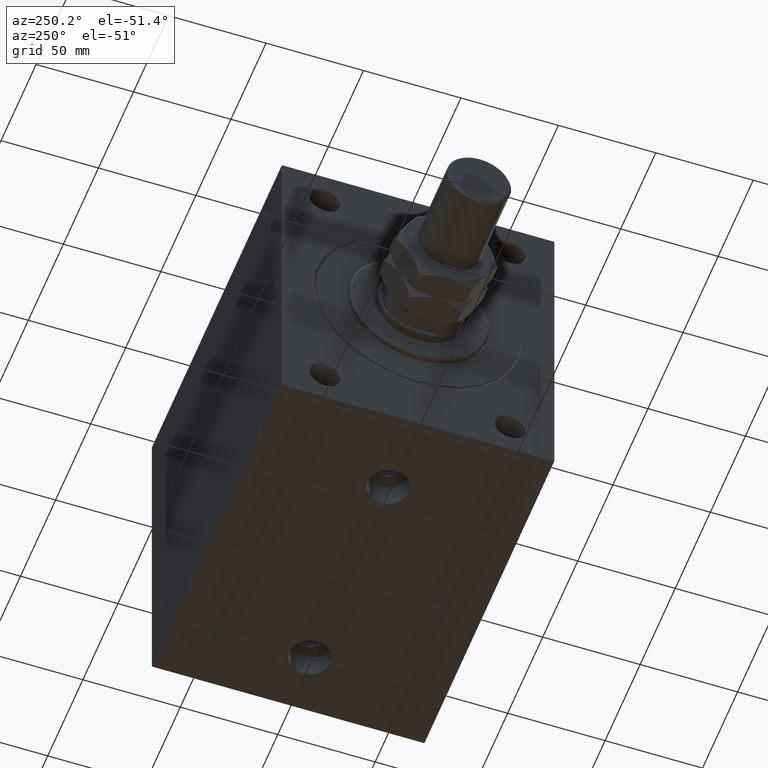
[diagram: clean part render]
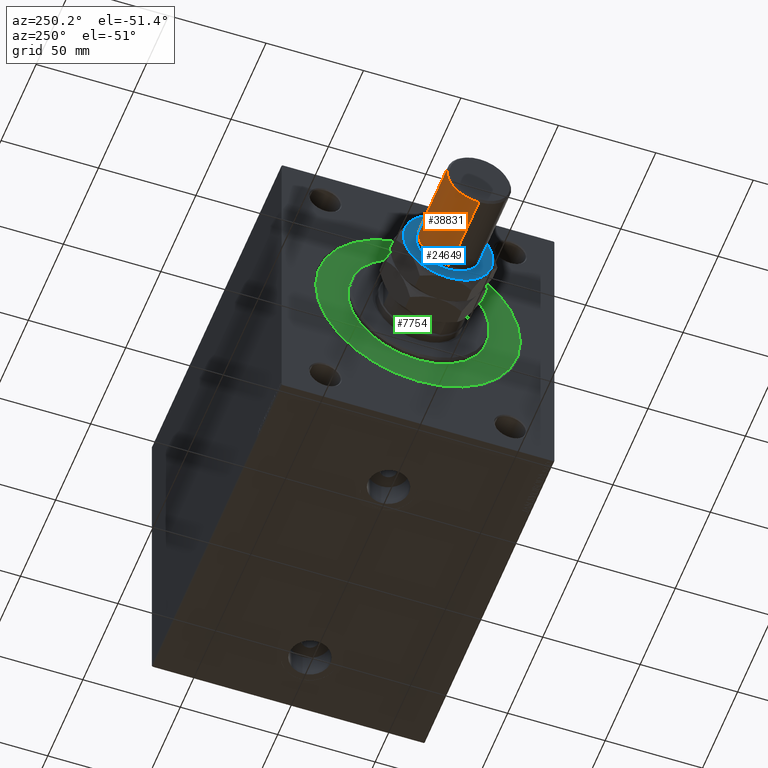
[diagram: same view with three faces highlighted in distinct colors, each labeled with its STEP entity id]
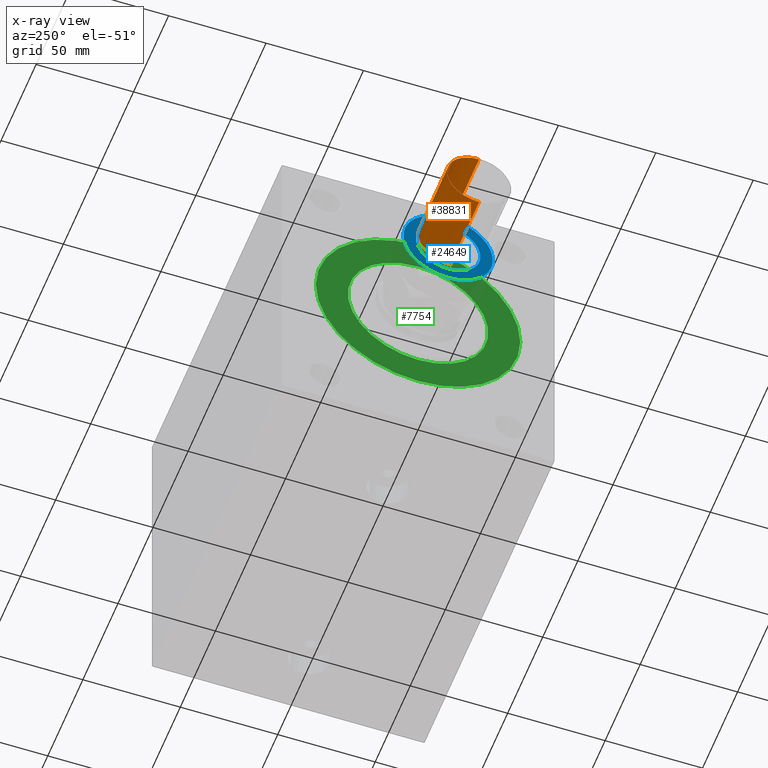
[diagram: x-ray of the same camera — body ghosted, the three highlighted faces saturated]
A machine part, auxiliary view with three faces highlighted in distinct colors.
The next image is the same camera in x-ray (body ghosted, the three faces saturated) — at least one of them is partly hidden behind the body in this view.
Their STEP definitions:

[orange] entity #38831 — the highlighted cylindrical surface (edge-blend (fillet) strip) has radius 16.5 mm, axis along (1, -0, -0).
#760 = EDGE_CURVE ( 'NONE', #43003, #20032, #23784, .T. ) ;
#1394 = CARTESIAN_POINT ( 'NONE',  ( -16.50000000000000000, 0.000000000000000000, 30.99999999999998579 ) ) ;
#2917 = EDGE_LOOP ( 'NONE', ( #42060, #16261, #29067, #20535 ) ) ;
#8924 = CARTESIAN_POINT ( 'NONE',  ( -16.50000000000000000, 0.000000000000000000, 73.00000000000000000 ) ) ;
#9072 = VERTEX_POINT ( 'NONE', #44779 ) ;
#10478 = AXIS2_PLACEMENT_3D ( 'NONE', #33186, #44448, #11831 ) ;
#11250 = EDGE_CURVE ( 'NONE', #43003, #9072, #21371, .T. ) ;
#11831 = DIRECTION ( 'NONE',  ( -1.000000000000000000, 0.000000000000000000, 0.000000000000000000 ) ) ;
#13001 = CARTESIAN_POINT ( 'NONE',  ( 16.50000000000000000, 2.020667218593133100E-15, 30.99999999999998579 ) ) ;
#13046 = CARTESIAN_POINT ( 'NONE',  ( 16.50000000000000000, 2.020667218593133100E-15, 73.00000000000000000 ) ) ;
#13086 = CARTESIAN_POINT ( 'NONE',  ( 0.000000000000000000, 0.000000000000000000, 72.00000000000000000 ) ) ;
#15641 = DIRECTION ( 'NONE',  ( -0.000000000000000000, -0.000000000000000000, -1.000000000000000000 ) ) ;
#15837 = DIRECTION ( 'NONE',  ( -0.000000000000000000, -0.000000000000000000, 1.000000000000000000 ) ) ;
#16261 = ORIENTED_EDGE ( 'NONE', *, *, #30324, .T. ) ;
#18552 = CYLINDRICAL_SURFACE ( 'NONE', #10478, 16.50000000000000000 ) ;
#18971 = CIRCLE ( 'NONE', #40434, 16.50000000000000000 ) ;
#20032 = VERTEX_POINT ( 'NONE', #1394 ) ;
#20224 = DIRECTION ( 'NONE',  ( -0.000000000000000000, -0.000000000000000000, -1.000000000000000000 ) ) ;
#20535 = ORIENTED_EDGE ( 'NONE', *, *, #760, .F. ) ;
#21371 = CIRCLE ( 'NONE', #38258, 16.50000000000000000 ) ;
#23784 = LINE ( 'NONE', #8924, #27988 ) ;
#27988 = VECTOR ( 'NONE', #15641, 1000.000000000000000 ) ;
#28417 = DIRECTION ( 'NONE',  ( 0.000000000000000000, 0.000000000000000000, -1.000000000000000000 ) ) ;
#29067 = ORIENTED_EDGE ( 'NONE', *, *, #37718, .T. ) ;
#29990 = CARTESIAN_POINT ( 'NONE',  ( 0.000000000000000000, 0.000000000000000000, 30.99999999999998579 ) ) ;
#30324 = EDGE_CURVE ( 'NONE', #9072, #33144, #45403, .T. ) ;
#31554 = DIRECTION ( 'NONE',  ( 1.000000000000000000, 0.000000000000000000, 0.000000000000000000 ) ) ;
#31668 = DIRECTION ( 'NONE',  ( 1.000000000000000000, 0.000000000000000000, 0.000000000000000000 ) ) ;
#33144 = VERTEX_POINT ( 'NONE', #13001 ) ;
#33186 = CARTESIAN_POINT ( 'NONE',  ( 0.000000000000000000, 0.000000000000000000, 73.00000000000000000 ) ) ;
#36369 = VECTOR ( 'NONE', #20224, 1000.000000000000000 ) ;
#37718 = EDGE_CURVE ( 'NONE', #33144, #20032, #18971, .T. ) ;
#38258 = AXIS2_PLACEMENT_3D ( 'NONE', #13086, #28417, #31554 ) ;
#38831 = ADVANCED_FACE ( 'NONE', ( #41090 ), #18552, .T. ) ;
#40434 = AXIS2_PLACEMENT_3D ( 'NONE', #29990, #15837, #31668 ) ;
#40896 = CARTESIAN_POINT ( 'NONE',  ( -16.50000000000000000, 0.000000000000000000, 72.00000000000000000 ) ) ;
#41090 = FACE_OUTER_BOUND ( 'NONE', #2917, .T. ) ;
#42060 = ORIENTED_EDGE ( 'NONE', *, *, #11250, .T. ) ;
#43003 = VERTEX_POINT ( 'NONE', #40896 ) ;
#44448 = DIRECTION ( 'NONE',  ( -0.000000000000000000, -0.000000000000000000, -1.000000000000000000 ) ) ;
#44779 = CARTESIAN_POINT ( 'NONE',  ( 16.50000000000000000, 2.020667218593133100E-15, 72.00000000000000000 ) ) ;
#45403 = LINE ( 'NONE', #13046, #36369 ) ;

[blue] entity #24649 — the highlighted planar face has unit normal (-1, 0, 0).
#439 = VERTEX_POINT ( 'NONE', #5633 ) ;
#574 = CARTESIAN_POINT ( 'NONE',  ( 0.000000000000000000, 0.000000000000000000, 28.00000000000000000 ) ) ;
#1014 = CIRCLE ( 'NONE', #24808, 22.99999999999999645 ) ;
#1867 = CARTESIAN_POINT ( 'NONE',  ( 0.000000000000000000, 0.000000000000000000, 28.00000000000000000 ) ) ;
#1880 = DIRECTION ( 'NONE',  ( 0.000000000000000000, 0.000000000000000000, 1.000000000000000000 ) ) ;
#2223 = CIRCLE ( 'NONE', #20697, 16.50000000000000000 ) ;
#2464 = VERTEX_POINT ( 'NONE', #8775 ) ;
#3464 = ORIENTED_EDGE ( 'NONE', *, *, #24906, .T. ) ;
#3609 = ORIENTED_EDGE ( 'NONE', *, *, #9213, .T. ) ;
#3640 = CARTESIAN_POINT ( 'NONE',  ( 11.49999999999999822, 19.91858428704208706, 28.00000000000000000 ) ) ;
#3748 = CARTESIAN_POINT ( 'NONE',  ( 0.000000000000000000, 0.000000000000000000, 28.00000000000000000 ) ) ;
#4179 = CARTESIAN_POINT ( 'NONE',  ( 0.000000000000000000, 0.000000000000000000, 28.00000000000000000 ) ) ;
#4311 = DIRECTION ( 'NONE',  ( 1.000000000000000000, 0.000000000000000000, 0.000000000000000000 ) ) ;
#5026 = DIRECTION ( 'NONE',  ( 0.000000000000000000, 0.000000000000000000, 1.000000000000000000 ) ) ;
#5633 = CARTESIAN_POINT ( 'NONE',  ( -11.49999999999999822, 19.91858428704208706, 28.00000000000000000 ) ) ;
#5746 = VERTEX_POINT ( 'NONE', #25107 ) ;
#5958 = CIRCLE ( 'NONE', #21271, 22.99999999999999645 ) ;
#7494 = DIRECTION ( 'NONE',  ( 1.000000000000000000, 0.000000000000000000, 0.000000000000000000 ) ) ;
#7748 = DIRECTION ( 'NONE',  ( 0.000000000000000000, 0.000000000000000000, 1.000000000000000000 ) ) ;
#7783 = FACE_BOUND ( 'NONE', #13221, .T. ) ;
#8469 = DIRECTION ( 'NONE',  ( 0.000000000000000000, 0.000000000000000000, 1.000000000000000000 ) ) ;
#8648 = CARTESIAN_POINT ( 'NONE',  ( -22.99999999999999645, 0.000000000000000000, 28.00000000000000000 ) ) ;
#8775 = CARTESIAN_POINT ( 'NONE',  ( -16.50000000000000000, 2.020667218593133100E-15, 28.00000000000000000 ) ) ;
#9213 = EDGE_CURVE ( 'NONE', #439, #46153, #13680, .T. ) ;
#9515 = AXIS2_PLACEMENT_3D ( 'NONE', #4179, #15429, #29814 ) ;
#9912 = CIRCLE ( 'NONE', #42841, 22.99999999999999645 ) ;
#12667 = EDGE_CURVE ( 'NONE', #5746, #2464, #2223, .T. ) ;
#12994 = CARTESIAN_POINT ( 'NONE',  ( -11.50000000000000533, -19.91858428704208706, 28.00000000000000000 ) ) ;
#13221 = EDGE_LOOP ( 'NONE', ( #42481, #27826 ) ) ;
#13269 = EDGE_CURVE ( 'NONE', #31464, #29401, #38974, .T. ) ;
#13680 = CIRCLE ( 'NONE', #43509, 22.99999999999999645 ) ;
#14568 = EDGE_CURVE ( 'NONE', #34841, #439, #9912, .T. ) ;
#15429 = DIRECTION ( 'NONE',  ( 0.000000000000000000, 0.000000000000000000, 1.000000000000000000 ) ) ;
#17772 = EDGE_CURVE ( 'NONE', #37445, #34841, #38320, .T. ) ;
#18519 = CARTESIAN_POINT ( 'NONE',  ( 0.000000000000000000, 0.000000000000000000, 28.00000000000000000 ) ) ;
#18984 = DIRECTION ( 'NONE',  ( 0.000000000000000000, 0.000000000000000000, 1.000000000000000000 ) ) ;
#20697 = AXIS2_PLACEMENT_3D ( 'NONE', #1867, #41888, #38308 ) ;
#21271 = AXIS2_PLACEMENT_3D ( 'NONE', #34104, #18984, #7494 ) ;
#21485 = DIRECTION ( 'NONE',  ( 1.000000000000000000, 0.000000000000000000, 0.000000000000000000 ) ) ;
#22647 = ORIENTED_EDGE ( 'NONE', *, *, #17772, .T. ) ;
#22868 = FACE_OUTER_BOUND ( 'NONE', #38505, .T. ) ;
#24649 = ADVANCED_FACE ( 'NONE', ( #7783, #22868 ), #44198, .T. ) ;
#24774 = CIRCLE ( 'NONE', #44685, 16.50000000000000000 ) ;
#24808 = AXIS2_PLACEMENT_3D ( 'NONE', #37639, #5026, #4311 ) ;
#24906 = EDGE_CURVE ( 'NONE', #46153, #31464, #1014, .T. ) ;
#25107 = CARTESIAN_POINT ( 'NONE',  ( 16.50000000000000000, 0.000000000000000000, 28.00000000000000000 ) ) ;
#25709 = DIRECTION ( 'NONE',  ( 1.000000000000000000, 0.000000000000000000, 0.000000000000000000 ) ) ;
#26586 = EDGE_CURVE ( 'NONE', #2464, #5746, #24774, .T. ) ;
#26916 = CARTESIAN_POINT ( 'NONE',  ( 0.000000000000000000, 0.000000000000000000, 28.00000000000000000 ) ) ;
#27643 = CARTESIAN_POINT ( 'NONE',  ( 22.99999999999999645, 0.000000000000000000, 28.00000000000000000 ) ) ;
#27826 = ORIENTED_EDGE ( 'NONE', *, *, #26586, .T. ) ;
#28231 = CARTESIAN_POINT ( 'NONE',  ( 0.000000000000000000, 0.000000000000000000, 28.00000000000000000 ) ) ;
#29401 = VERTEX_POINT ( 'NONE', #45449 ) ;
#29814 = DIRECTION ( 'NONE',  ( 1.000000000000000000, 0.000000000000000000, -0.000000000000000000 ) ) ;
#30256 = DIRECTION ( 'NONE',  ( 1.000000000000000000, 0.000000000000000000, 0.000000000000000000 ) ) ;
#30675 = AXIS2_PLACEMENT_3D ( 'NONE', #18519, #7748, #25709 ) ;
#31464 = VERTEX_POINT ( 'NONE', #12994 ) ;
#32348 = ORIENTED_EDGE ( 'NONE', *, *, #13269, .T. ) ;
#34104 = CARTESIAN_POINT ( 'NONE',  ( 0.000000000000000000, 0.000000000000000000, 28.00000000000000000 ) ) ;
#34841 = VERTEX_POINT ( 'NONE', #3640 ) ;
#34982 = ORIENTED_EDGE ( 'NONE', *, *, #14568, .T. ) ;
#35444 = DIRECTION ( 'NONE',  ( 1.000000000000000000, 0.000000000000000000, 0.000000000000000000 ) ) ;
#36768 = EDGE_CURVE ( 'NONE', #29401, #37445, #5958, .T. ) ;
#37234 = DIRECTION ( 'NONE',  ( 1.000000000000000000, 0.000000000000000000, 0.000000000000000000 ) ) ;
#37445 = VERTEX_POINT ( 'NONE', #27643 ) ;
#37639 = CARTESIAN_POINT ( 'NONE',  ( 0.000000000000000000, 0.000000000000000000, 28.00000000000000000 ) ) ;
#38308 = DIRECTION ( 'NONE',  ( 1.000000000000000000, 0.000000000000000000, 0.000000000000000000 ) ) ;
#38320 = CIRCLE ( 'NONE', #30675, 22.99999999999999645 ) ;
#38505 = EDGE_LOOP ( 'NONE', ( #45496, #22647, #34982, #3609, #3464, #32348 ) ) ;
#38974 = CIRCLE ( 'NONE', #42797, 22.99999999999999645 ) ;
#39711 = DIRECTION ( 'NONE',  ( 0.000000000000000000, 0.000000000000000000, 1.000000000000000000 ) ) ;
#40112 = DIRECTION ( 'NONE',  ( -0.000000000000000000, -0.000000000000000000, -1.000000000000000000 ) ) ;
#41888 = DIRECTION ( 'NONE',  ( -0.000000000000000000, -0.000000000000000000, -1.000000000000000000 ) ) ;
#42481 = ORIENTED_EDGE ( 'NONE', *, *, #12667, .T. ) ;
#42797 = AXIS2_PLACEMENT_3D ( 'NONE', #26916, #8469, #30256 ) ;
#42841 = AXIS2_PLACEMENT_3D ( 'NONE', #28231, #1880, #35444 ) ;
#43509 = AXIS2_PLACEMENT_3D ( 'NONE', #3748, #39711, #21485 ) ;
#44198 = PLANE ( 'NONE',  #9515 ) ;
#44685 = AXIS2_PLACEMENT_3D ( 'NONE', #574, #40112, #37234 ) ;
#45449 = CARTESIAN_POINT ( 'NONE',  ( 11.50000000000000533, -19.91858428704207995, 28.00000000000000000 ) ) ;
#45496 = ORIENTED_EDGE ( 'NONE', *, *, #36768, .T. ) ;
#46153 = VERTEX_POINT ( 'NONE', #8648 ) ;

[green] entity #7754 — the highlighted planar face has unit normal (1, -0, -0).
#249 = VERTEX_POINT ( 'NONE', #38306 ) ;
#413 = ORIENTED_EDGE ( 'NONE', *, *, #47372, .F. ) ;
#2120 = DIRECTION ( 'NONE',  ( 1.000000000000000000, -0.000000000000000000, 0.000000000000000000 ) ) ;
#2137 = EDGE_CURVE ( 'NONE', #21567, #42387, #12682, .T. ) ;
#4433 = DIRECTION ( 'NONE',  ( 0.000000000000000000, 0.000000000000000000, 1.000000000000000000 ) ) ;
#5800 = PLANE ( 'NONE',  #32766 ) ;
#7754 = ADVANCED_FACE ( 'NONE', ( #9145, #38642 ), #5800, .F. ) ;
#9069 = DIRECTION ( 'NONE',  ( 0.000000000000000000, 0.000000000000000000, 1.000000000000000000 ) ) ;
#9145 = FACE_BOUND ( 'NONE', #38210, .T. ) ;
#10982 = DIRECTION ( 'NONE',  ( 0.000000000000000000, 0.000000000000000000, -1.000000000000000000 ) ) ;
#11465 = DIRECTION ( 'NONE',  ( 1.000000000000000000, -0.000000000000000000, 0.000000000000000000 ) ) ;
#12682 = CIRCLE ( 'NONE', #39487, 52.49999999999999289 ) ;
#13156 = ORIENTED_EDGE ( 'NONE', *, *, #24094, .F. ) ;
#13810 = CIRCLE ( 'NONE', #15345, 36.00000000000000000 ) ;
#15345 = AXIS2_PLACEMENT_3D ( 'NONE', #22023, #11465, #10982 ) ;
#20563 = CARTESIAN_POINT ( 'NONE',  ( 0.000000000000000000, 0.000000000000000000, 0.000000000000000000 ) ) ;
#21567 = VERTEX_POINT ( 'NONE', #32603 ) ;
#22023 = CARTESIAN_POINT ( 'NONE',  ( 0.000000000000000000, 0.000000000000000000, 0.000000000000000000 ) ) ;
#22571 = AXIS2_PLACEMENT_3D ( 'NONE', #40629, #34809, #4433 ) ;
#22615 = ORIENTED_EDGE ( 'NONE', *, *, #2137, .F. ) ;
#23768 = DIRECTION ( 'NONE',  ( 0.000000000000000000, 0.000000000000000000, 1.000000000000000000 ) ) ;
#24094 = EDGE_CURVE ( 'NONE', #249, #29293, #43180, .T. ) ;
#28876 = EDGE_LOOP ( 'NONE', ( #33735, #22615 ) ) ;
#29293 = VERTEX_POINT ( 'NONE', #32318 ) ;
#29611 = EDGE_CURVE ( 'NONE', #42387, #21567, #38667, .T. ) ;
#32318 = CARTESIAN_POINT ( 'NONE',  ( 0.000000000000000000, 4.408728476930470856E-15, -36.00000000000000000 ) ) ;
#32603 = CARTESIAN_POINT ( 'NONE',  ( 0.000000000000000000, 6.429395695523603167E-15, 52.49999999999999289 ) ) ;
#32766 = AXIS2_PLACEMENT_3D ( 'NONE', #35054, #45818, #23768 ) ;
#32969 = CARTESIAN_POINT ( 'NONE',  ( 0.000000000000000000, 0.000000000000000000, -52.49999999999999289 ) ) ;
#33735 = ORIENTED_EDGE ( 'NONE', *, *, #29611, .F. ) ;
#34496 = DIRECTION ( 'NONE',  ( 0.000000000000000000, 0.000000000000000000, -1.000000000000000000 ) ) ;
#34732 = CARTESIAN_POINT ( 'NONE',  ( 0.000000000000000000, 0.000000000000000000, 0.000000000000000000 ) ) ;
#34809 = DIRECTION ( 'NONE',  ( -1.000000000000000000, 0.000000000000000000, 0.000000000000000000 ) ) ;
#34972 = DIRECTION ( 'NONE',  ( -1.000000000000000000, 0.000000000000000000, 0.000000000000000000 ) ) ;
#35054 = CARTESIAN_POINT ( 'NONE',  ( 0.000000000000000000, 0.000000000000000000, 0.000000000000000000 ) ) ;
#38210 = EDGE_LOOP ( 'NONE', ( #13156, #413 ) ) ;
#38306 = CARTESIAN_POINT ( 'NONE',  ( 0.000000000000000000, 0.000000000000000000, 36.00000000000000000 ) ) ;
#38642 = FACE_OUTER_BOUND ( 'NONE', #28876, .T. ) ;
#38667 = CIRCLE ( 'NONE', #22571, 52.49999999999999289 ) ;
#39487 = AXIS2_PLACEMENT_3D ( 'NONE', #34732, #34972, #9069 ) ;
#40629 = CARTESIAN_POINT ( 'NONE',  ( 0.000000000000000000, 0.000000000000000000, 0.000000000000000000 ) ) ;
#40785 = AXIS2_PLACEMENT_3D ( 'NONE', #20563, #2120, #34496 ) ;
#42387 = VERTEX_POINT ( 'NONE', #32969 ) ;
#43180 = CIRCLE ( 'NONE', #40785, 36.00000000000000000 ) ;
#45818 = DIRECTION ( 'NONE',  ( -1.000000000000000000, 0.000000000000000000, 0.000000000000000000 ) ) ;
#47372 = EDGE_CURVE ( 'NONE', #29293, #249, #13810, .T. ) ;